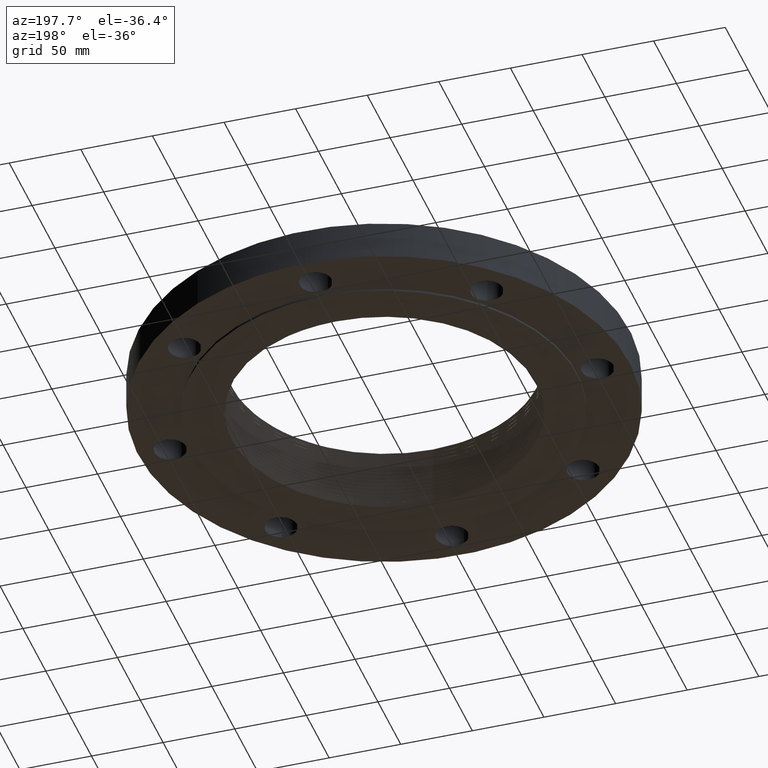
[diagram: clean part render]
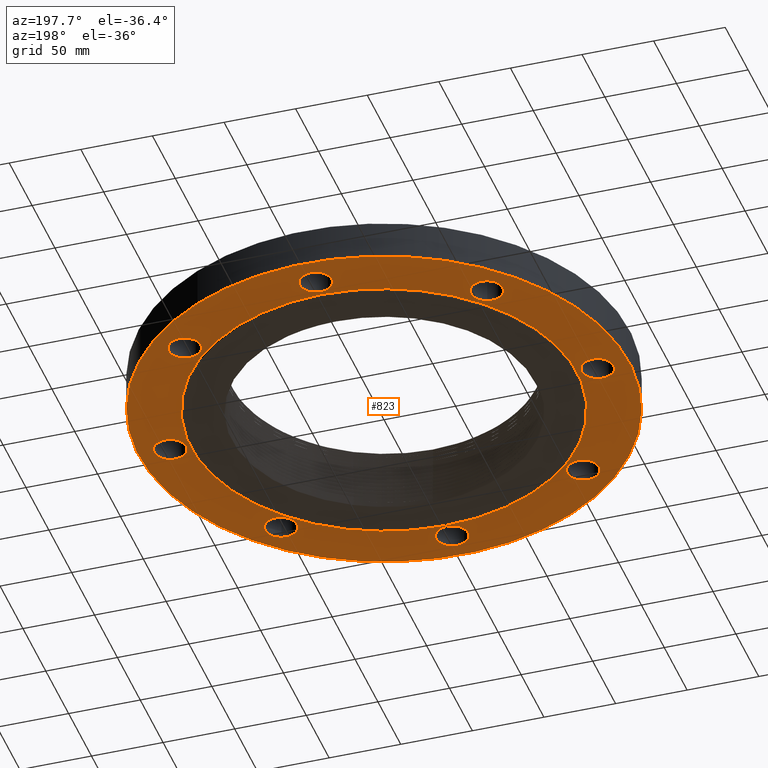
[diagram: same view with one face highlighted and labeled with its STEP entity id]
A machine part, auxiliary view. The second image highlights one B-rep face of the part: STEP entity #823.
In plain terms, the highlighted planar face has unit normal (0, 0, -1).
Its self-contained STEP definition (entity closure, byte-faithful):
#353=AXIS2_PLACEMENT_3D('Circle Axis2P3D',#351,#352,$) ;
#379=AXIS2_PLACEMENT_3D('Circle Axis2P3D',#377,#378,$) ;
#410=AXIS2_PLACEMENT_3D('Circle Axis2P3D',#408,#409,$) ;
#436=AXIS2_PLACEMENT_3D('Circle Axis2P3D',#434,#435,$) ;
#467=AXIS2_PLACEMENT_3D('Circle Axis2P3D',#465,#466,$) ;
#493=AXIS2_PLACEMENT_3D('Circle Axis2P3D',#491,#492,$) ;
#524=AXIS2_PLACEMENT_3D('Circle Axis2P3D',#522,#523,$) ;
#550=AXIS2_PLACEMENT_3D('Circle Axis2P3D',#548,#549,$) ;
#581=AXIS2_PLACEMENT_3D('Circle Axis2P3D',#579,#580,$) ;
#607=AXIS2_PLACEMENT_3D('Circle Axis2P3D',#605,#606,$) ;
#638=AXIS2_PLACEMENT_3D('Circle Axis2P3D',#636,#637,$) ;
#664=AXIS2_PLACEMENT_3D('Circle Axis2P3D',#662,#663,$) ;
#695=AXIS2_PLACEMENT_3D('Circle Axis2P3D',#693,#694,$) ;
#721=AXIS2_PLACEMENT_3D('Circle Axis2P3D',#719,#720,$) ;
#739=AXIS2_PLACEMENT_3D('Plane Axis2P3D',#736,#737,#738) ;
#743=AXIS2_PLACEMENT_3D('Circle Axis2P3D',#741,#742,$) ;
#752=AXIS2_PLACEMENT_3D('Circle Axis2P3D',#750,#751,$) ;
#761=AXIS2_PLACEMENT_3D('Circle Axis2P3D',#759,#760,$) ;
#770=AXIS2_PLACEMENT_3D('Circle Axis2P3D',#768,#769,$) ;
#779=AXIS2_PLACEMENT_3D('Circle Axis2P3D',#777,#778,$) ;
#788=AXIS2_PLACEMENT_3D('Circle Axis2P3D',#786,#787,$) ;
#346=CARTESIAN_POINT('Vertex',(4.27812973319,-4.57645417668,0.)) ;
#351=CARTESIAN_POINT('Axis2P3D Location',(4.15425233949,-4.15425233949,0.)) ;
#355=CARTESIAN_POINT('Vertex',(4.03037494578,-3.73205050229,0.)) ;
#377=CARTESIAN_POINT('Axis2P3D Location',(4.15425233949,-4.15425233949,0.)) ;
#403=CARTESIAN_POINT('Vertex',(-6.26113632726,0.210947236987,0.)) ;
#408=CARTESIAN_POINT('Axis2P3D Location',(-5.87500000002,-7.19479994502E-016,0.)) ;
#412=CARTESIAN_POINT('Vertex',(-5.48886367279,-0.210947236987,0.)) ;
#434=CARTESIAN_POINT('Axis2P3D Location',(-5.87500000002,-7.19479994502E-016,0.)) ;
#460=CARTESIAN_POINT('Vertex',(4.57645417668,4.27812973319,0.)) ;
#465=CARTESIAN_POINT('Axis2P3D Location',(4.15425233949,4.15425233949,0.)) ;
#469=CARTESIAN_POINT('Vertex',(3.73205050229,4.03037494578,0.)) ;
#491=CARTESIAN_POINT('Axis2P3D Location',(4.15425233949,4.15425233949,0.)) ;
#517=CARTESIAN_POINT('Vertex',(-4.57645417668,-4.27812973319,0.)) ;
#522=CARTESIAN_POINT('Axis2P3D Location',(-4.15425233949,-4.15425233949,0.)) ;
#526=CARTESIAN_POINT('Vertex',(-3.73205050229,-4.03037494578,0.)) ;
#548=CARTESIAN_POINT('Axis2P3D Location',(-4.15425233949,-4.15425233949,0.)) ;
#574=CARTESIAN_POINT('Vertex',(0.210947236987,6.26113632726,0.)) ;
#579=CARTESIAN_POINT('Axis2P3D Location',(-1.07921999175E-015,5.87500000002,0.)) ;
#583=CARTESIAN_POINT('Vertex',(-0.210947236987,5.48886367279,0.)) ;
#605=CARTESIAN_POINT('Axis2P3D Location',(-1.07921999175E-015,5.87500000002,0.)) ;
#631=CARTESIAN_POINT('Vertex',(-0.210947236987,-6.26113632726,0.)) ;
#636=CARTESIAN_POINT('Axis2P3D Location',(-7.59224940954E-016,-5.87500000002,0.)) ;
#640=CARTESIAN_POINT('Vertex',(0.210947236987,-5.48886367279,0.)) ;
#662=CARTESIAN_POINT('Axis2P3D Location',(-7.59224940954E-016,-5.87500000002,0.)) ;
#688=CARTESIAN_POINT('Vertex',(-4.27812973319,4.57645417668,0.)) ;
#693=CARTESIAN_POINT('Axis2P3D Location',(-4.15425233949,4.15425233949,0.)) ;
#697=CARTESIAN_POINT('Vertex',(-4.03037494578,3.73205050229,0.)) ;
#719=CARTESIAN_POINT('Axis2P3D Location',(-4.15425233949,4.15425233949,0.)) ;
#736=CARTESIAN_POINT('Axis2P3D Location',(0.,5.31000000002,0.)) ;
#741=CARTESIAN_POINT('Axis2P3D Location',(0.,0.,0.)) ;
#745=CARTESIAN_POINT('Vertex',(-3.23612238559,-5.92368229278,8.39223703654E-016)) ;
#747=CARTESIAN_POINT('Vertex',(3.23612238559,5.92368229278,8.39223703654E-016)) ;
#750=CARTESIAN_POINT('Axis2P3D Location',(0.,0.,0.)) ;
#759=CARTESIAN_POINT('Axis2P3D Location',(5.87500000002,0.,0.)) ;
#763=CARTESIAN_POINT('Vertex',(6.26113632726,-0.210947236987,0.)) ;
#765=CARTESIAN_POINT('Vertex',(5.48886367279,0.210947236987,0.)) ;
#768=CARTESIAN_POINT('Axis2P3D Location',(5.87500000002,0.,0.)) ;
#777=CARTESIAN_POINT('Axis2P3D Location',(0.,0.,0.)) ;
#781=CARTESIAN_POINT('Vertex',(2.54574961,4.65996340366,6.99353086378E-016)) ;
#783=CARTESIAN_POINT('Vertex',(-2.54574961,-4.65996340366,6.99353086378E-016)) ;
#786=CARTESIAN_POINT('Axis2P3D Location',(0.,0.,0.)) ;
#352=DIRECTION('Axis2P3D Direction',(0.,-0.,-0.0393700787402)) ;
#378=DIRECTION('Axis2P3D Direction',(0.,-0.,-0.0393700787402)) ;
#409=DIRECTION('Axis2P3D Direction',(-0.,0.,-0.0393700787402)) ;
#435=DIRECTION('Axis2P3D Direction',(-0.,0.,-0.0393700787402)) ;
#466=DIRECTION('Axis2P3D Direction',(0.,0.,-0.0393700787402)) ;
#492=DIRECTION('Axis2P3D Direction',(0.,0.,-0.0393700787402)) ;
#523=DIRECTION('Axis2P3D Direction',(-0.,0.,-0.0393700787402)) ;
#549=DIRECTION('Axis2P3D Direction',(-0.,0.,-0.0393700787402)) ;
#580=DIRECTION('Axis2P3D Direction',(0.,0.,-0.0393700787402)) ;
#606=DIRECTION('Axis2P3D Direction',(0.,0.,-0.0393700787402)) ;
#637=DIRECTION('Axis2P3D Direction',(0.,-0.,-0.0393700787402)) ;
#663=DIRECTION('Axis2P3D Direction',(0.,-0.,-0.0393700787402)) ;
#694=DIRECTION('Axis2P3D Direction',(0.,0.,-0.0393700787402)) ;
#720=DIRECTION('Axis2P3D Direction',(0.,0.,-0.0393700787402)) ;
#737=DIRECTION('Axis2P3D Direction',(0.,0.,-0.0393700787402)) ;
#738=DIRECTION('Axis2P3D XDirection',(0.0393700787402,0.,0.)) ;
#742=DIRECTION('Axis2P3D Direction',(0.,0.,-0.0393700787402)) ;
#751=DIRECTION('Axis2P3D Direction',(0.,0.,-0.0393700787402)) ;
#760=DIRECTION('Axis2P3D Direction',(0.,0.,-0.0393700787402)) ;
#769=DIRECTION('Axis2P3D Direction',(0.,0.,-0.0393700787402)) ;
#778=DIRECTION('Axis2P3D Direction',(0.,0.,-0.0393700787402)) ;
#787=DIRECTION('Axis2P3D Direction',(0.,0.,-0.0393700787402)) ;
#756=ORIENTED_EDGE('',*,*,#749,.T.) ;
#757=ORIENTED_EDGE('',*,*,#754,.T.) ;
#774=ORIENTED_EDGE('',*,*,#767,.F.) ;
#775=ORIENTED_EDGE('',*,*,#772,.F.) ;
#792=ORIENTED_EDGE('',*,*,#785,.F.) ;
#793=ORIENTED_EDGE('',*,*,#790,.F.) ;
#796=ORIENTED_EDGE('',*,*,#381,.F.) ;
#797=ORIENTED_EDGE('',*,*,#357,.F.) ;
#800=ORIENTED_EDGE('',*,*,#666,.F.) ;
#801=ORIENTED_EDGE('',*,*,#642,.F.) ;
#804=ORIENTED_EDGE('',*,*,#552,.F.) ;
#805=ORIENTED_EDGE('',*,*,#528,.F.) ;
#808=ORIENTED_EDGE('',*,*,#438,.F.) ;
#809=ORIENTED_EDGE('',*,*,#414,.F.) ;
#812=ORIENTED_EDGE('',*,*,#723,.F.) ;
#813=ORIENTED_EDGE('',*,*,#699,.F.) ;
#816=ORIENTED_EDGE('',*,*,#609,.F.) ;
#817=ORIENTED_EDGE('',*,*,#585,.F.) ;
#820=ORIENTED_EDGE('',*,*,#495,.F.) ;
#821=ORIENTED_EDGE('',*,*,#471,.F.) ;
#776=FACE_BOUND('',#773,.T.) ;
#794=FACE_BOUND('',#791,.T.) ;
#798=FACE_BOUND('',#795,.T.) ;
#802=FACE_BOUND('',#799,.T.) ;
#806=FACE_BOUND('',#803,.T.) ;
#810=FACE_BOUND('',#807,.T.) ;
#814=FACE_BOUND('',#811,.T.) ;
#818=FACE_BOUND('',#815,.T.) ;
#822=FACE_BOUND('',#819,.T.) ;
#823=ADVANCED_FACE('PartBody',(#758,#776,#794,#798,#802,#806,#810,#814,#818,#822),#740,.T.) ;
#354=CIRCLE('generated circle',#353,0.440000000002) ;
#380=CIRCLE('generated circle',#379,0.440000000002) ;
#411=CIRCLE('generated circle',#410,0.440000000002) ;
#437=CIRCLE('generated circle',#436,0.440000000002) ;
#468=CIRCLE('generated circle',#467,0.440000000002) ;
#494=CIRCLE('generated circle',#493,0.440000000002) ;
#525=CIRCLE('generated circle',#524,0.440000000002) ;
#551=CIRCLE('generated circle',#550,0.440000000002) ;
#582=CIRCLE('generated circle',#581,0.440000000002) ;
#608=CIRCLE('generated circle',#607,0.440000000002) ;
#639=CIRCLE('generated circle',#638,0.440000000002) ;
#665=CIRCLE('generated circle',#664,0.440000000002) ;
#696=CIRCLE('generated circle',#695,0.440000000002) ;
#722=CIRCLE('generated circle',#721,0.440000000002) ;
#744=CIRCLE('generated circle',#743,6.75000000003) ;
#753=CIRCLE('generated circle',#752,6.75000000003) ;
#762=CIRCLE('generated circle',#761,0.440000000002) ;
#771=CIRCLE('generated circle',#770,0.440000000002) ;
#780=CIRCLE('generated circle',#779,5.31000000002) ;
#789=CIRCLE('generated circle',#788,5.31000000002) ;
#357=EDGE_CURVE('',#347,#356,#354,.T.) ;
#381=EDGE_CURVE('',#356,#347,#380,.T.) ;
#414=EDGE_CURVE('',#404,#413,#411,.T.) ;
#438=EDGE_CURVE('',#413,#404,#437,.T.) ;
#471=EDGE_CURVE('',#461,#470,#468,.T.) ;
#495=EDGE_CURVE('',#470,#461,#494,.T.) ;
#528=EDGE_CURVE('',#518,#527,#525,.T.) ;
#552=EDGE_CURVE('',#527,#518,#551,.T.) ;
#585=EDGE_CURVE('',#575,#584,#582,.T.) ;
#609=EDGE_CURVE('',#584,#575,#608,.T.) ;
#642=EDGE_CURVE('',#632,#641,#639,.T.) ;
#666=EDGE_CURVE('',#641,#632,#665,.T.) ;
#699=EDGE_CURVE('',#689,#698,#696,.T.) ;
#723=EDGE_CURVE('',#698,#689,#722,.T.) ;
#749=EDGE_CURVE('',#746,#748,#744,.T.) ;
#754=EDGE_CURVE('',#748,#746,#753,.T.) ;
#767=EDGE_CURVE('',#764,#766,#762,.T.) ;
#772=EDGE_CURVE('',#766,#764,#771,.T.) ;
#785=EDGE_CURVE('',#782,#784,#780,.T.) ;
#790=EDGE_CURVE('',#784,#782,#789,.T.) ;
#755=EDGE_LOOP('',(#756,#757)) ;
#773=EDGE_LOOP('',(#774,#775)) ;
#791=EDGE_LOOP('',(#792,#793)) ;
#795=EDGE_LOOP('',(#796,#797)) ;
#799=EDGE_LOOP('',(#800,#801)) ;
#803=EDGE_LOOP('',(#804,#805)) ;
#807=EDGE_LOOP('',(#808,#809)) ;
#811=EDGE_LOOP('',(#812,#813)) ;
#815=EDGE_LOOP('',(#816,#817)) ;
#819=EDGE_LOOP('',(#820,#821)) ;
#758=FACE_OUTER_BOUND('',#755,.T.) ;
#740=PLANE('',#739) ;
#347=VERTEX_POINT('',#346) ;
#356=VERTEX_POINT('',#355) ;
#404=VERTEX_POINT('',#403) ;
#413=VERTEX_POINT('',#412) ;
#461=VERTEX_POINT('',#460) ;
#470=VERTEX_POINT('',#469) ;
#518=VERTEX_POINT('',#517) ;
#527=VERTEX_POINT('',#526) ;
#575=VERTEX_POINT('',#574) ;
#584=VERTEX_POINT('',#583) ;
#632=VERTEX_POINT('',#631) ;
#641=VERTEX_POINT('',#640) ;
#689=VERTEX_POINT('',#688) ;
#698=VERTEX_POINT('',#697) ;
#746=VERTEX_POINT('',#745) ;
#748=VERTEX_POINT('',#747) ;
#764=VERTEX_POINT('',#763) ;
#766=VERTEX_POINT('',#765) ;
#782=VERTEX_POINT('',#781) ;
#784=VERTEX_POINT('',#783) ;